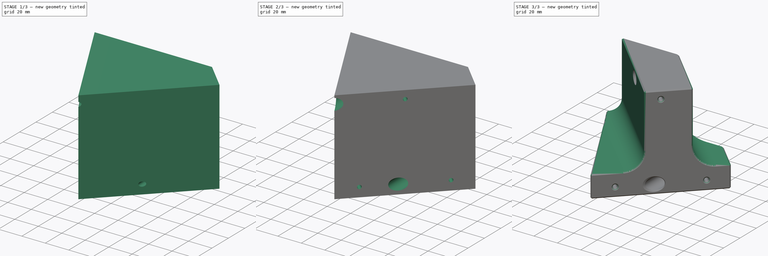
[diagram: build sequence overview — one tinted view per stage of 3, left to right]
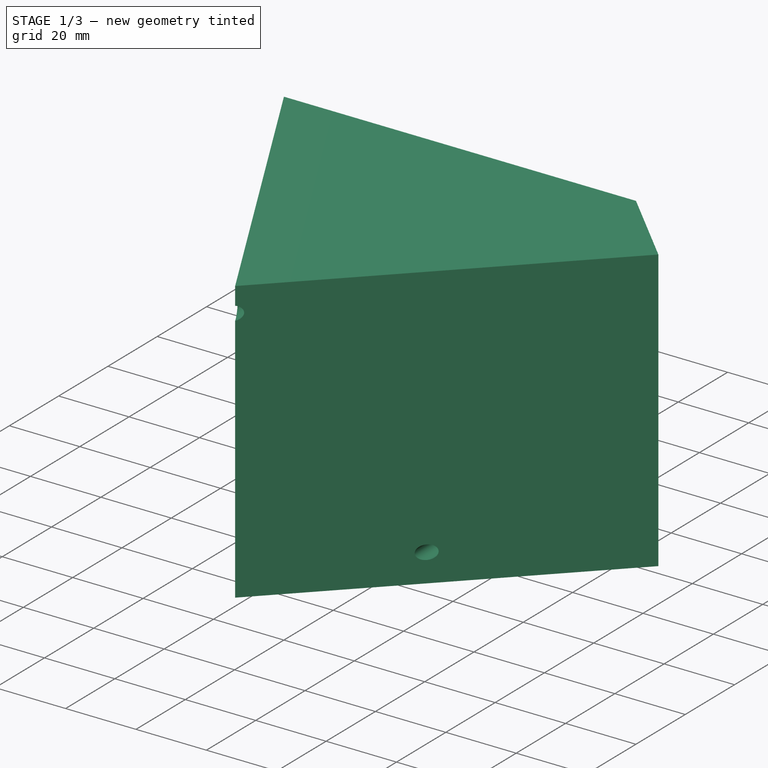
[diagram: stage 1 of 3 — iso view after this stage's code; geometry added in this stage tinted green]
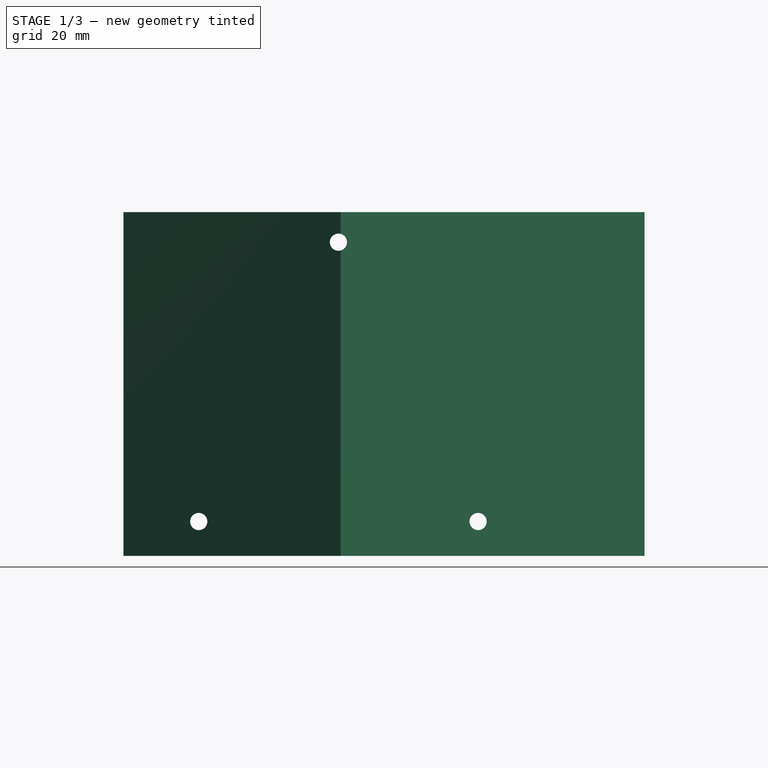
[diagram: stage 1 of 3 — front view after this stage's code; geometry added in this stage tinted green]
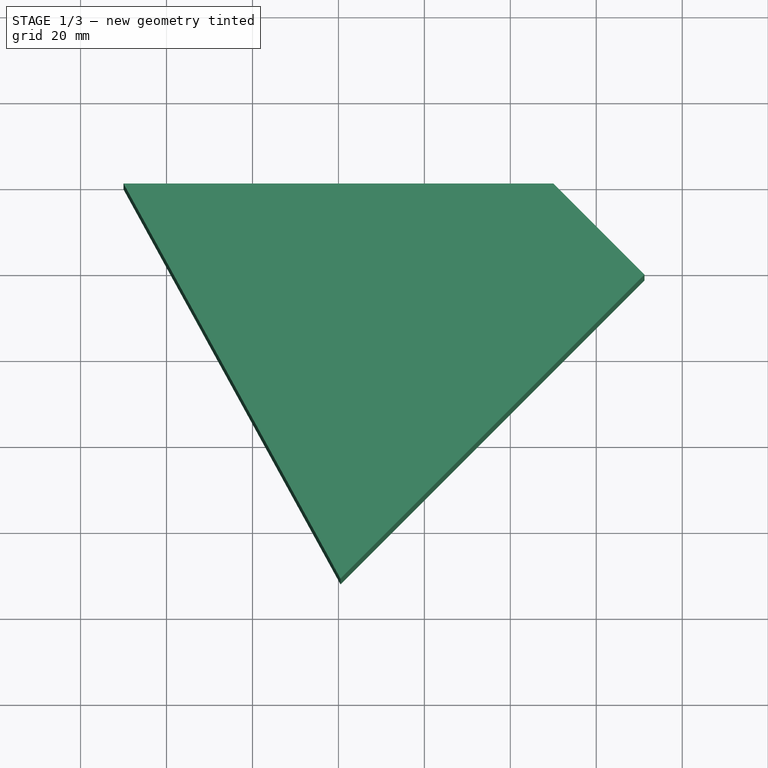
[diagram: stage 1 of 3 — top view after this stage's code; geometry added in this stage tinted green]
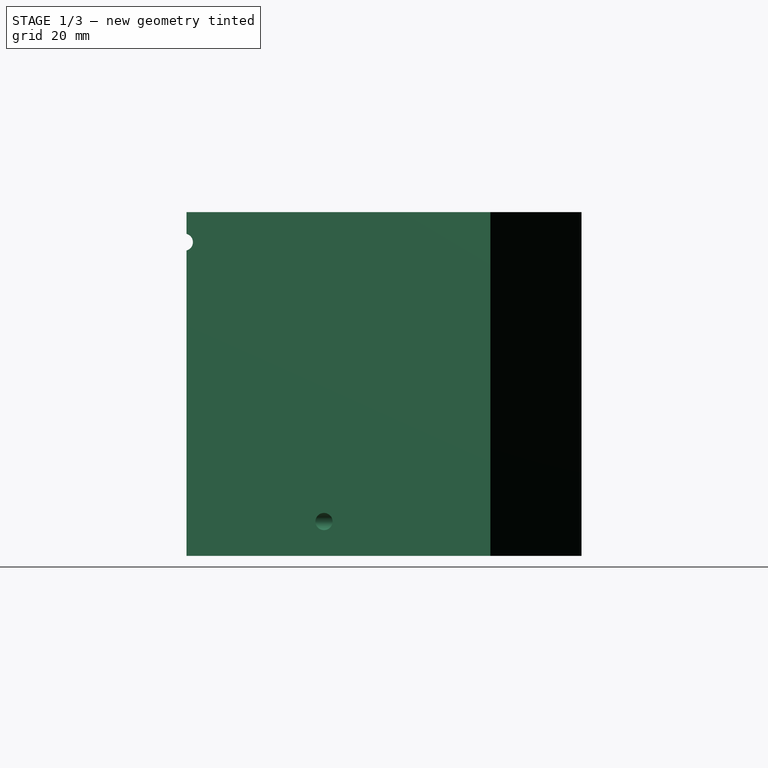
[diagram: stage 1 of 3 — right view after this stage's code; geometry added in this stage tinted green]
FCSTD DOCUMENT  (FreeCAD 0.21R33771 (Git))
Label: 20240614c_elfero_winkel_halter
License: All rights reserved
LicenseURL: http://en.wikipedia.org/wiki/All_rights_reserved
objects: Sketcher::SketchObject×5, PartDesign::Pocket×4, PartDesign::Pad×1, PartDesign::Chamfer×1, PartDesign::Body×1
note: 18 computed .brp shape members not serialized (recipe doc carries the construction recipe); baked Part::Feature solids carry a one-line shape summary decoded from their .brp

FEATURE [Sketcher::SketchObject] Sketch
  FullyConstrained = true
  MapMode = 5
  Support = -> [XY_Plane]
  sketch-geometry (5):
    g0: LineSegment StartX=0 StartY=0 StartZ=0 EndX=-50 EndY=0 EndZ=0
    g1: LineSegment StartX=0 StartY=0 StartZ=0 EndX=50 EndY=0 EndZ=0
    g2: LineSegment StartX=71.2132 StartY=-21.2132 StartZ=0 EndX=0.502525 EndY=-91.9239 EndZ=0
    g3: LineSegment StartX=71.2132 StartY=-21.2132 StartZ=0 EndX=50 EndY=0 EndZ=0
    g4: LineSegment StartX=0.502525 StartY=-91.9239 StartZ=0 EndX=-50 EndY=0 EndZ=0
  constraints (14):
    c: Coincident(g0,g-1)
    c: Coincident(g1,g0)
    c: PointOnObject(g1,g-1)
    c: PointOnObject(g0,g-1)
    c: DistanceX(g0,g0) = 50
    c: DistanceX(g1,g1) = 50
    c: Angle(g2) = -2.35619
    c: Distance(g2) = 100
    c: Coincident(g3,g2)
    c: Coincident(g3,g1)
    c: Coincident(g4,g2)
    c: Coincident(g4,g0)
    c: Angle(g3) = 2.35619
    c: Distance(g3) = 30
FEATURE [PartDesign::Pad] Pad
  Direction = (0,0,1)
  Length = 80
  Length2 = 10
  Profile = -> Sketch
  ReferenceAxis = -> Sketch [N_Axis]
  Type = 0
FEATURE [Sketcher::SketchObject] Sketch001
  FullyConstrained = true
  MapMode = 5
  Placement = pos=(0,0,0) rot=(1,0,0;1.5708rad)
  Support = -> [XZ_Plane]
  sketch-geometry (6):
    g0: Circle CenterX=-32.5 CenterY=8 CenterZ=0 NormalX=0 NormalY=0 NormalZ=1 AngleXU=0 Radius=2
    g1: Circle CenterX=32.5 CenterY=8 CenterZ=0 NormalX=0 NormalY=0 NormalZ=1 AngleXU=0 Radius=2
    g2: Circle CenterX=0 CenterY=73 CenterZ=0 NormalX=0 NormalY=0 NormalZ=1 AngleXU=0 Radius=2
    g3: LineSegment StartX=-32.5 StartY=8 StartZ=0 EndX=32.5 EndY=8 EndZ=0
    g4: LineSegment StartX=32.5 StartY=8 StartZ=0 EndX=0 EndY=73 EndZ=0
    g5: LineSegment StartX=0 StartY=73 StartZ=0 EndX=-32.5 EndY=8 EndZ=0
  constraints (15):
    c: Equal(g2,g1)
    c: Equal(g1,g0)
    c: Coincident(g3,g0)
    c: Coincident(g3,g1)
    c: Coincident(g4,g1)
    c: Coincident(g4,g2)
    c: Coincident(g5,g2)
    c: PointOnObject(g2,g-2)
    c: Equal(g4,g5)
    c: Horizontal(g3)
    c: DistanceX(g3,g3) = 65
    c: Coincident(g5,g0)
    c: Distance(g2,g3) = 65
    c: Diameter(g1) = 4
    c: DistanceY(g0) = 8
FEATURE [PartDesign::Pocket] Pocket
  BaseFeature = -> Pad
  Direction = (0,1,-2e-16)
  Length = 5
  Length2 = 5
  Midplane = true
  Profile = -> Sketch001
  ReferenceAxis = -> Sketch001 [N_Axis]
  Type = 1
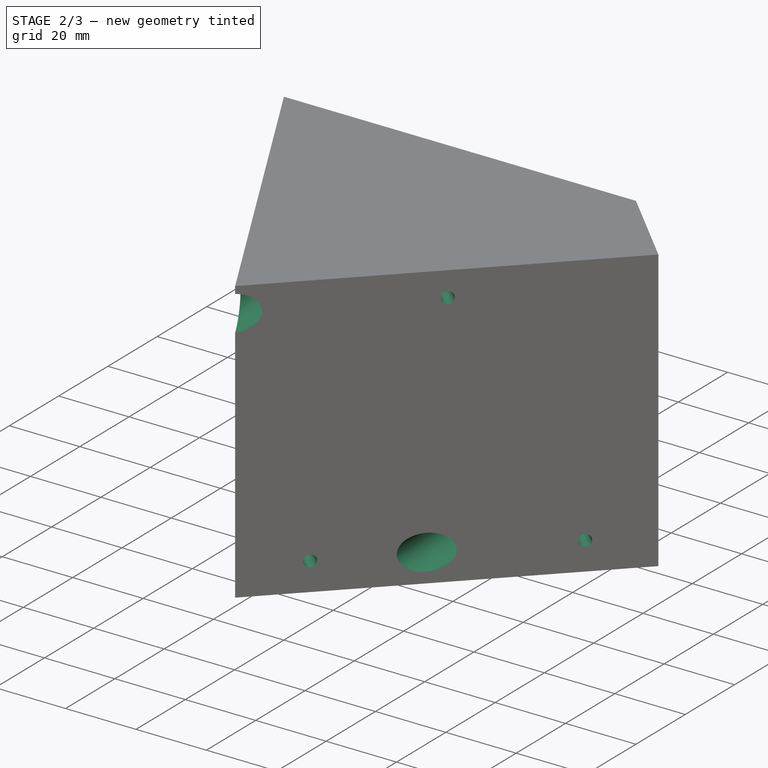
[diagram: stage 2 of 3 — iso view after this stage's code; geometry added in this stage tinted green]
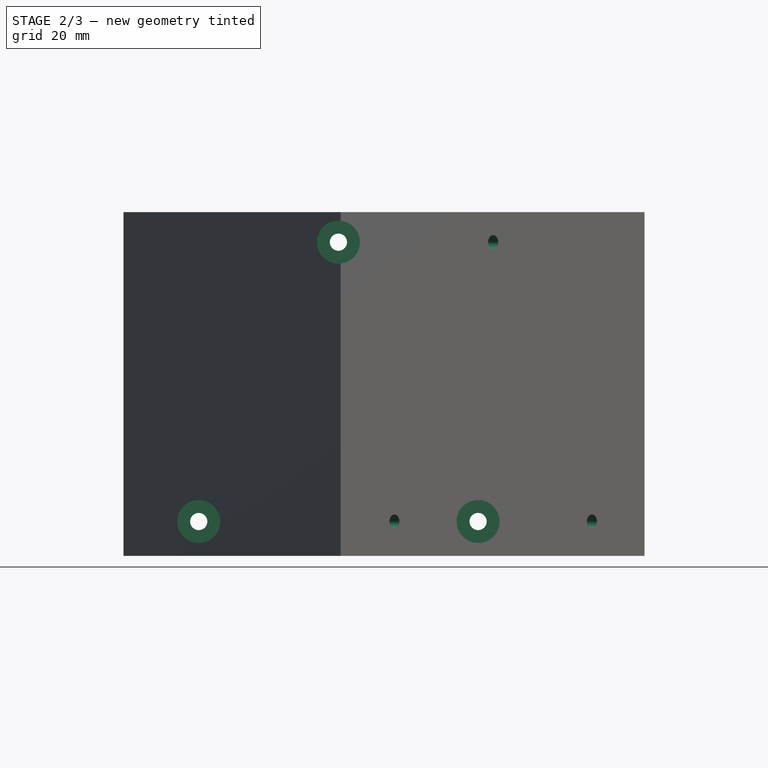
[diagram: stage 2 of 3 — front view after this stage's code; geometry added in this stage tinted green]
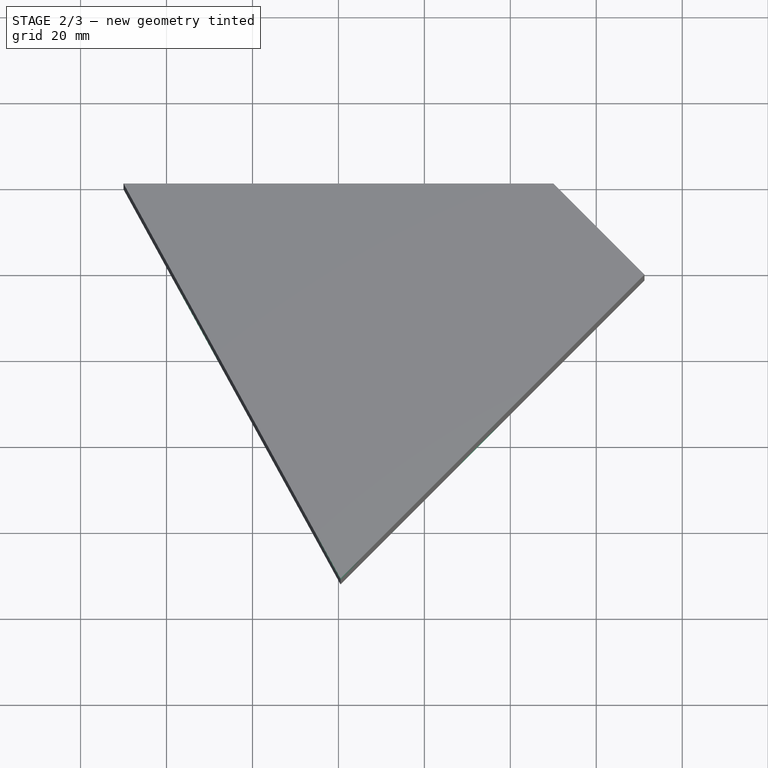
[diagram: stage 2 of 3 — top view after this stage's code; geometry added in this stage tinted green]
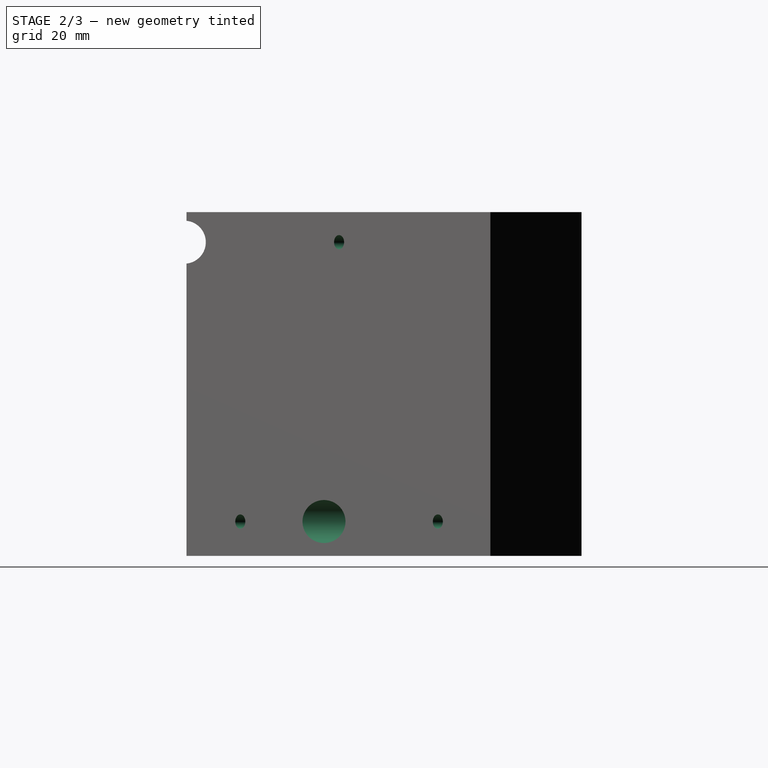
[diagram: stage 2 of 3 — right view after this stage's code; geometry added in this stage tinted green]
FEATURE [Sketcher::SketchObject] Sketch002
  AttachmentOffset = pos=(0,0,10) rot=(0,0,1;0rad)
  FullyConstrained = true
  MapMode = 5
  Placement = pos=(0,-10,2.2e-15) rot=(1,0,0;1.5708rad)
  Support = -> [XZ_Plane]
  sketch-geometry (6):
    g0: Circle CenterX=-32.5 CenterY=8 CenterZ=0 NormalX=0 NormalY=0 NormalZ=1 AngleXU=0 Radius=5
    g1: Circle CenterX=32.5 CenterY=8 CenterZ=0 NormalX=0 NormalY=0 NormalZ=1 AngleXU=0 Radius=5
    g2: Circle CenterX=0 CenterY=73 CenterZ=0 NormalX=0 NormalY=0 NormalZ=1 AngleXU=0 Radius=5
    g3: LineSegment StartX=0 StartY=73 StartZ=0 EndX=32.5 EndY=8 EndZ=0
    g4: LineSegment StartX=0 StartY=73 StartZ=0 EndX=-32.5 EndY=8 EndZ=0
    g5: LineSegment StartX=-32.5 StartY=8 StartZ=0 EndX=32.5 EndY=8 EndZ=0
  constraints (15):
    c: PointOnObject(g2,g-2)
    c: Coincident(g3,g2)
    c: Coincident(g3,g1)
    c: Coincident(g4,g2)
    c: Coincident(g4,g0)
    c: Coincident(g5,g0)
    c: Coincident(g5,g1)
    c: Horizontal(g5)
    c: DistanceX(g5,g5) = 65
    c: Equal(g3,g4)
    c: Distance(g2,g5) = 65
    c: DistanceY(g1) = 8
    c: Equal(g2,g1)
    c: Equal(g1,g0)
    c: Diameter(g2) = 10
FEATURE [PartDesign::Pocket] Pocket001
  BaseFeature = -> Pocket
  Direction = (0,1,-2e-16)
  Length = 5
  Length2 = 5
  Profile = -> Sketch002
  ReferenceAxis = -> Sketch002 [N_Axis]
  Reversed = true
  Type = 1
FEATURE [Sketcher::SketchObject] Sketch003
  FullyConstrained = false
  MapMode = 5
  Placement = pos=(46.2132,-46.2132,0) rot=(0.862856,0.357407,0.357407;1.71777rad)
  Support = -> [Pocket001]
  sketch-geometry (7):
    g0: Circle CenterX=18.0691 CenterY=8 CenterZ=0 NormalX=0 NormalY=0 NormalZ=1 AngleXU=0 Radius=1.65
    g1: Circle CenterX=-46.9309 CenterY=8 CenterZ=0 NormalX=0 NormalY=0 NormalZ=1 AngleXU=0 Radius=1.65
    g2: Circle CenterX=-14.4309 CenterY=73 CenterZ=0 NormalX=0 NormalY=0 NormalZ=1 AngleXU=0 Radius=1.65
    g3: LineSegment StartX=-46.9309 StartY=8 StartZ=0 EndX=18.0691 EndY=8 EndZ=0
    g4: LineSegment StartX=-14.4309 StartY=73 StartZ=0 EndX=18.0691 EndY=8 EndZ=0
    g5: LineSegment StartX=-14.4309 StartY=73 StartZ=0 EndX=-46.9309 EndY=8 EndZ=0
    g6: GeomPoint X=6.0125 Y=96.833 Z=0
  constraints (14):
    c: Equal(g2,g1)
    c: Equal(g1,g0)
    c: Coincident(g3,g1)
    c: Coincident(g3,g0)
    c: Horizontal(g3)
    c: Coincident(g4,g2)
    c: Coincident(g4,g0)
    c: Coincident(g5,g2)
    c: Coincident(g5,g1)
    c: Equal(g5,g4)
    c: DistanceX(g3,g3) = 65
    c: Distance(g2,g3) = 65
    c: Diameter(g2) = 3.3
    c: DistanceY(g0) = 8
FEATURE [PartDesign::Pocket] Pocket002  label="M4"
  BaseFeature = -> Pocket001
  Direction = (-0.707107,0.707107,0)
  Length = 28
  Length2 = 5
  Profile = -> Sketch003
  ReferenceAxis = -> Sketch003 [N_Axis]
  Type = 0
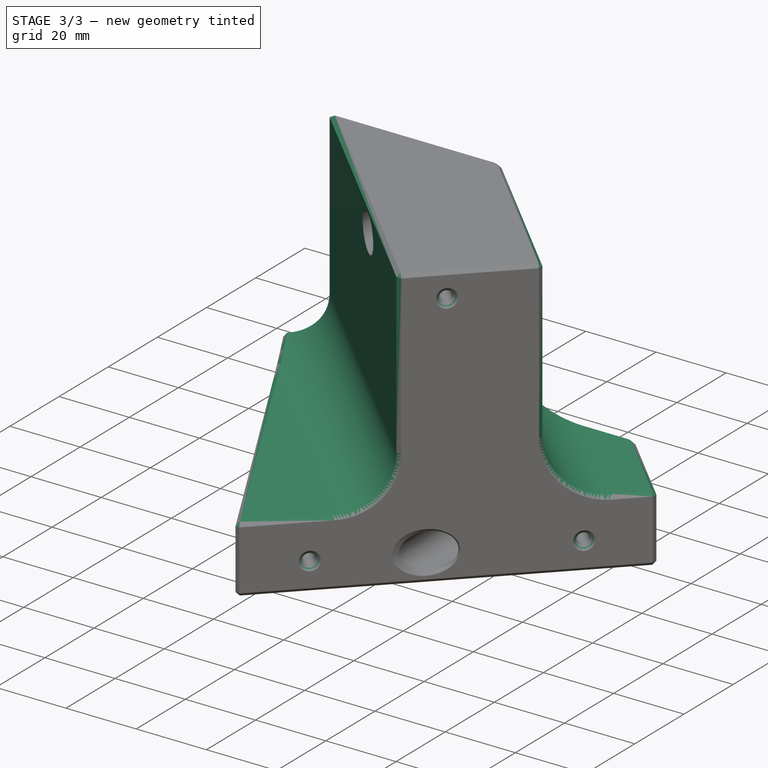
[diagram: stage 3 of 3 — iso view after this stage's code; geometry added in this stage tinted green]
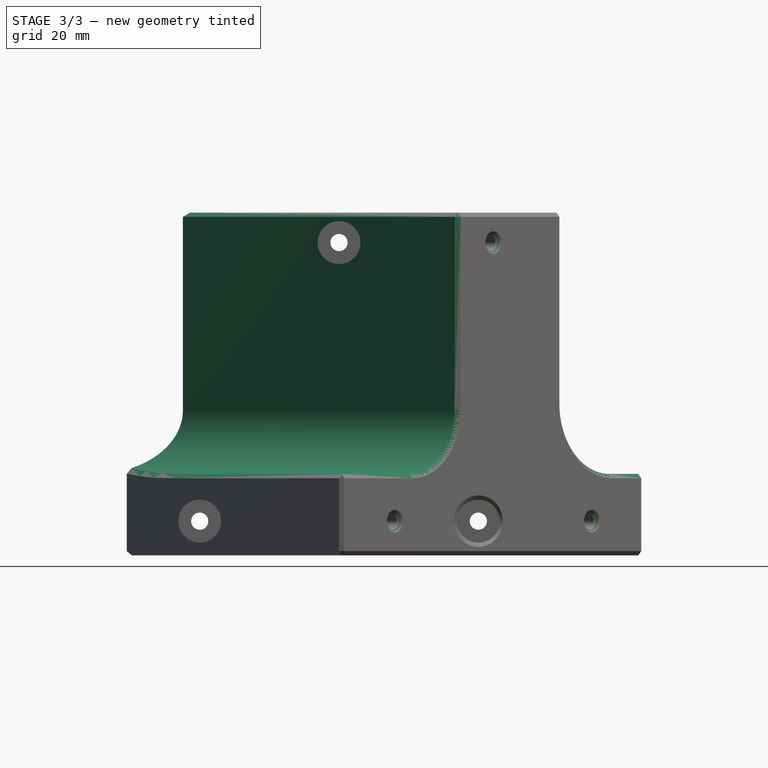
[diagram: stage 3 of 3 — front view after this stage's code; geometry added in this stage tinted green]
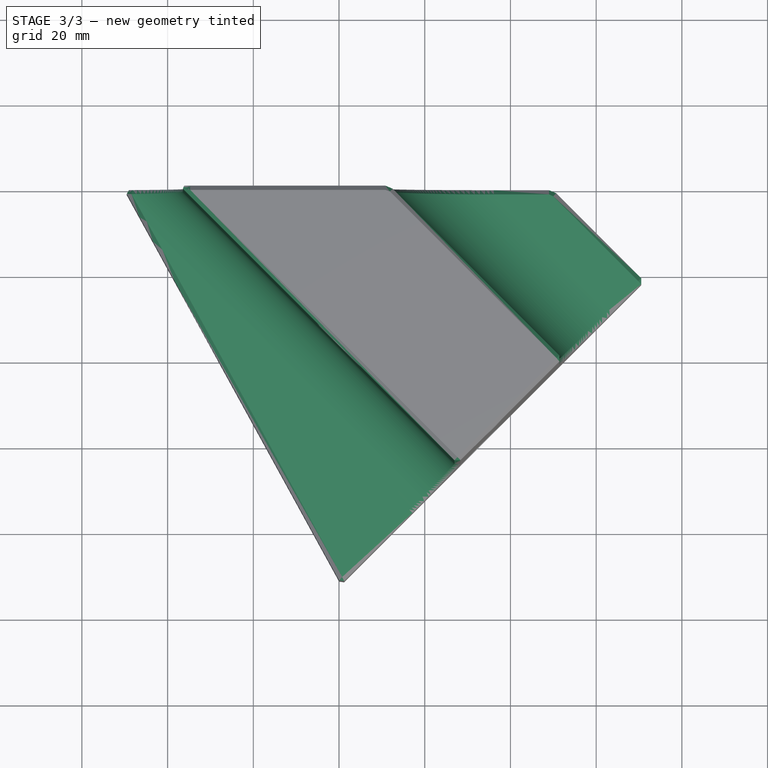
[diagram: stage 3 of 3 — top view after this stage's code; geometry added in this stage tinted green]
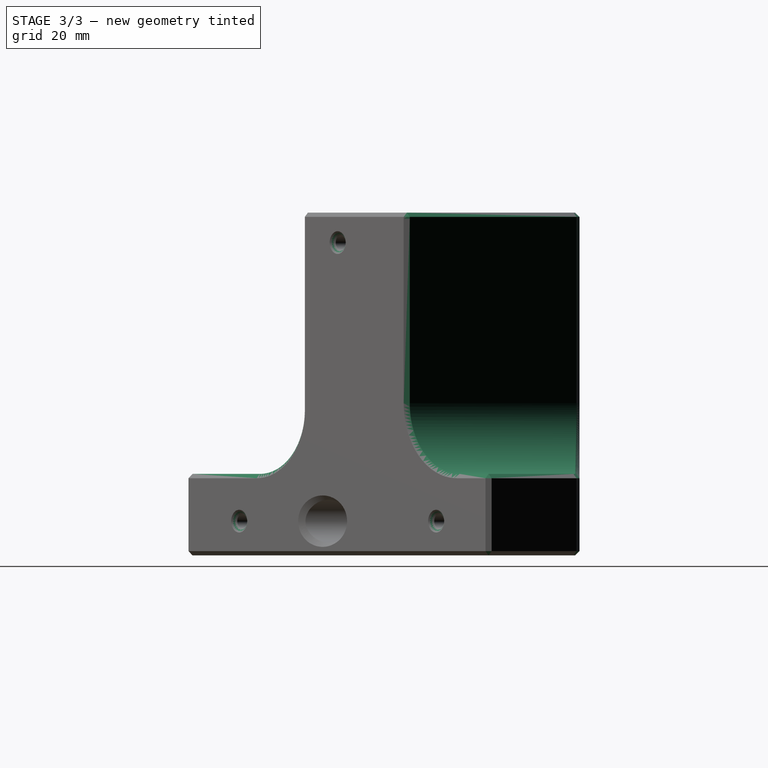
[diagram: stage 3 of 3 — right view after this stage's code; geometry added in this stage tinted green]
FEATURE [Sketcher::SketchObject] Sketch004
  FullyConstrained = false
  MapMode = 5
  Placement = pos=(46.2132,-46.2132,0) rot=(0.862856,0.357407,0.357407;1.71777rad)
  Support = -> [Pocket002]
  sketch-geometry (21):
    g0: ArcOfCircle CenterX=24.8288 CenterY=78.5469 CenterZ=0 NormalX=0 NormalY=0 NormalZ=1 AngleXU=0 Radius=16.4785 StartAngle=1.5708 EndAngle=3.14159
    g1: LineSegment StartX=24.8288 StartY=95.0254 StartZ=0 EndX=46.5836 EndY=95.0254 EndZ=0
    g2: ArcOfCircle CenterX=46.5836 CenterY=78.5469 CenterZ=0 NormalX=0 NormalY=0 NormalZ=1 AngleXU=0 Radius=16.4785 StartAngle=0 EndAngle=1.5708
    g3: LineSegment StartX=63.062 StartY=78.5469 StartZ=0 EndX=63.062 EndY=35.4992 EndZ=0
    g4: ArcOfCircle CenterX=46.5836 CenterY=35.4992 CenterZ=0 NormalX=0 NormalY=0 NormalZ=1 AngleXU=0 Radius=16.4785 StartAngle=4.71239 EndAngle=6.28319
    g5: LineSegment StartX=46.5836 StartY=19.0207 StartZ=0 EndX=24.8288 EndY=19.0207 EndZ=0
    g6: ArcOfCircle CenterX=24.8288 CenterY=35.4992 CenterZ=0 NormalX=0 NormalY=0 NormalZ=1 AngleXU=0 Radius=16.4785 StartAngle=3.14159 EndAngle=4.71239
    g7: LineSegment StartX=8.35029 StartY=35.4992 StartZ=0 EndX=8.35029 EndY=78.5469 EndZ=0
    g8: GeomPoint X=8.35029 Y=95.0254 Z=0
    g9: GeomPoint X=63.062 Y=19.0207 Z=0
    g10: ArcOfCircle CenterX=-82.9015 CenterY=100.331 CenterZ=0 NormalX=0 NormalY=0 NormalZ=1 AngleXU=0 Radius=14.8599 StartAngle=1.5708 EndAngle=3.14159
    g11: LineSegment StartX=-82.9015 StartY=115.191 StartZ=0 EndX=-41.1247 EndY=115.191 EndZ=0
    g12: ArcOfCircle CenterX=-41.1247 CenterY=100.331 CenterZ=0 NormalX=0 NormalY=0 NormalZ=1 AngleXU=0 Radius=14.8599 StartAngle=0 EndAngle=1.5708
    g13: LineSegment StartX=-26.2648 StartY=100.331 StartZ=0 EndX=-26.2648 EndY=33.8805 EndZ=0
    g14: ArcOfCircle CenterX=-41.1247 CenterY=33.8805 CenterZ=0 NormalX=0 NormalY=0 NormalZ=1 AngleXU=0 Radius=14.8599 StartAngle=4.71239 EndAngle=6.28319
    g15: LineSegment StartX=-41.1247 StartY=19.0207 StartZ=0 EndX=-82.9015 EndY=19.0207 EndZ=0
    g16: ArcOfCircle CenterX=-82.9015 CenterY=33.8805 CenterZ=0 NormalX=0 NormalY=0 NormalZ=1 AngleXU=0 Radius=14.8599 StartAngle=3.14159 EndAngle=4.71239
    g17: LineSegment StartX=-97.7614 StartY=33.8805 StartZ=0 EndX=-97.7614 EndY=100.331 EndZ=0
    g18: GeomPoint X=-97.7614 Y=115.191 Z=0
    g19: GeomPoint X=-26.2648 Y=19.0207 Z=0
    g20: LineSegment StartX=-41.1247 StartY=19.0207 StartZ=0 EndX=24.8288 EndY=19.0207 EndZ=0
  constraints (41):
    c: Tangent(g0,g1) = 1.5708
    c: Tangent(g1,g2) = 1.5708
    c: Tangent(g2,g3) = 1.5708
    c: Tangent(g3,g4) = 1.5708
    c: Tangent(g4,g5) = 1.5708
    c: Tangent(g5,g6) = 1.5708
    c: Tangent(g6,g7) = 1.5708
    c: Tangent(g7,g0) = 1.5708
    c: Horizontal(g1)
    c: Horizontal(g5)
    c: Vertical(g3)
    c: Vertical(g7)
    c: Equal(g0,g2)
    c: Equal(g2,g4)
    c: Equal(g4,g6)
    c: PointOnObject(g8,g1)
    c: PointOnObject(g8,g7)
    c: PointOnObject(g9,g3)
    c: PointOnObject(g9,g5)
    c: Tangent(g10,g11) = 1.5708
    c: Tangent(g11,g12) = 1.5708
    c: Tangent(g12,g13) = 1.5708
    c: Tangent(g13,g14) = 1.5708
    c: Tangent(g14,g15) = 1.5708
    c: Tangent(g15,g16) = 1.5708
    c: Tangent(g16,g17) = 1.5708
    c: Tangent(g17,g10) = 1.5708
    c: Horizontal(g11)
    c: Horizontal(g15)
    c: Vertical(g13)
    c: Vertical(g17)
    c: Equal(g10,g12)
    c: Equal(g12,g14)
    c: Equal(g14,g16)
    c: PointOnObject(g18,g11)
    c: PointOnObject(g18,g17)
    c: PointOnObject(g19,g13)
    c: PointOnObject(g19,g15)
    c: Coincident(g20,g14)
    c: Coincident(g20,g5)
    c: Tangent(g20,g14)
FEATURE [PartDesign::Pocket] Pocket003  label="weg"
  BaseFeature = -> Pocket002
  Direction = (-0.707107,0.707107,0)
  Length = 5
  Length2 = 5
  Profile = -> Sketch004
  ReferenceAxis = -> Sketch004 [N_Axis]
  Type = 1
FEATURE [PartDesign::Chamfer] Chamfer
  Angle = 45
  Base = -> Pocket003 [Face5,Face6,Face3,Edge44,Edge45,Edge40,Edge7,Edge1,Edge3]
  BaseFeature = -> Pocket003
  ChamferType = 0
  FlipDirection = false
  Size = 1
  Size2 = 1
  SupportTransform = false
  UseAllEdges = false
FEATURE [PartDesign::Body] Body  label="body"
  Group = -> [Sketch,Pad,Sketch001,Pocket,Sketch002,Pocket001,Sketch003,Pocket002,Sketch004,Pocket003,Chamfer]
  Origin = -> Origin
  Tip = -> Chamfer
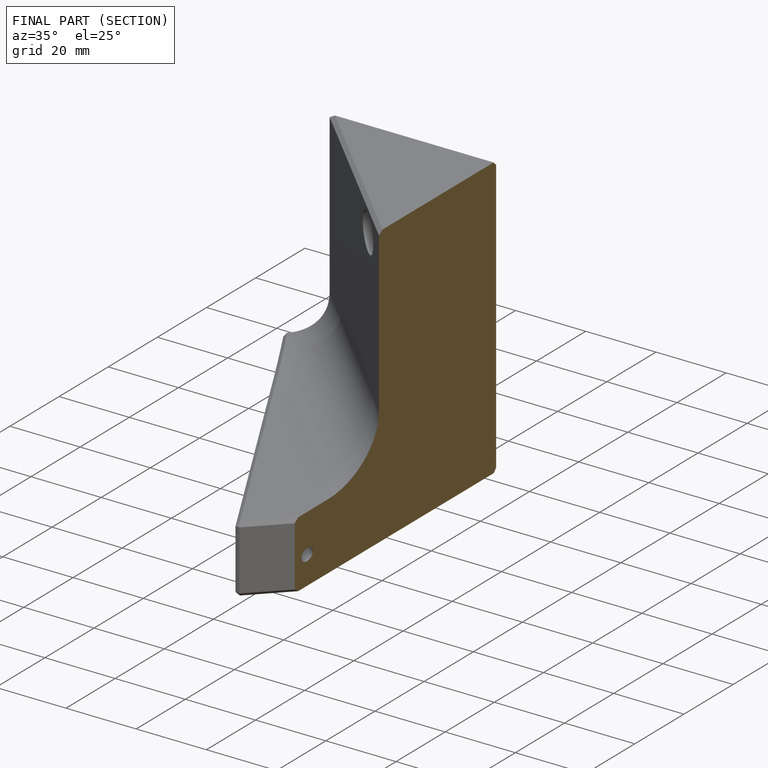
[diagram: finished part — half-section view (interior)]
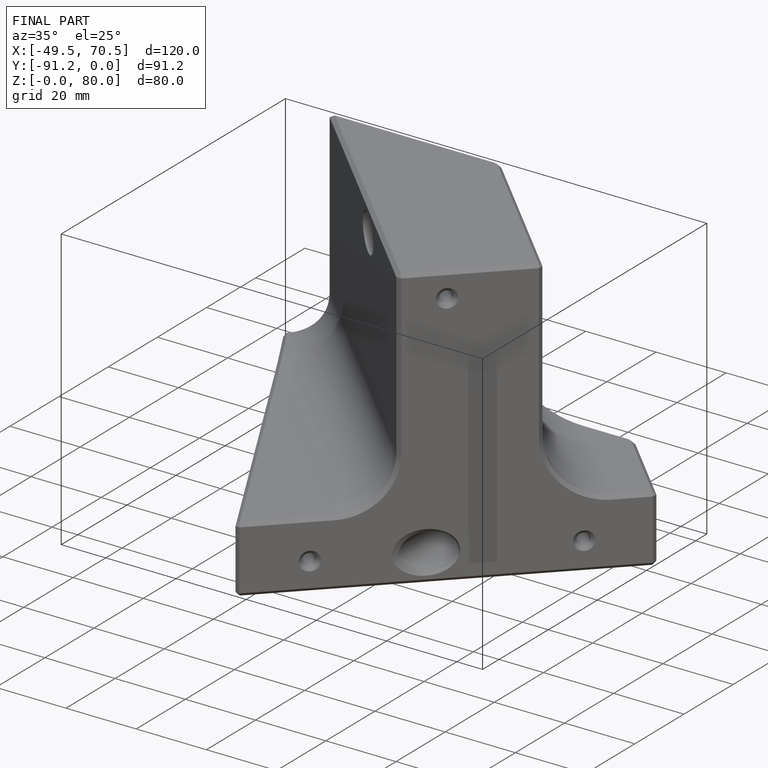
[diagram: finished part — iso view with bounding-box wireframe]
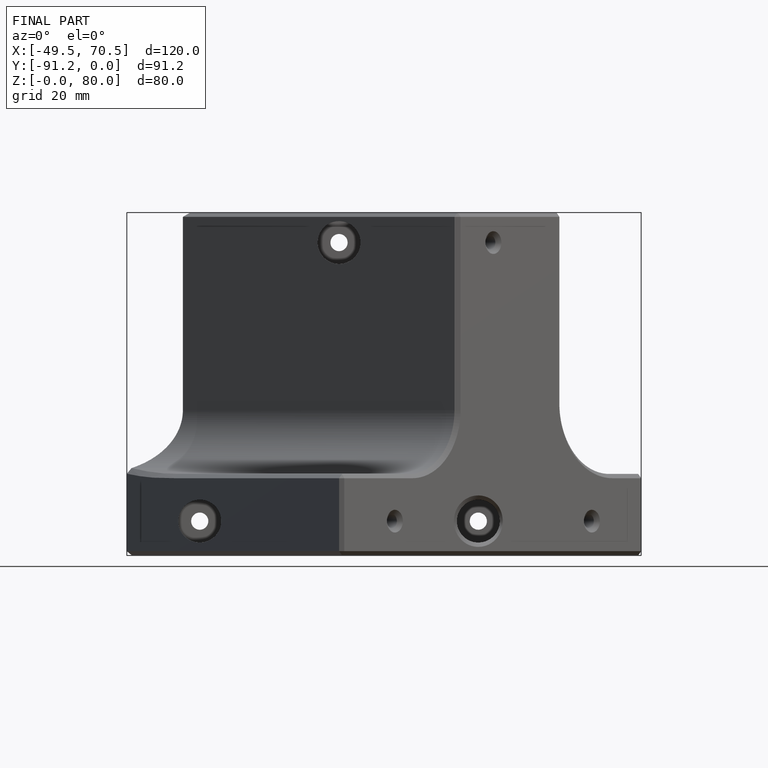
[diagram: finished part — front view with bounding-box wireframe]
